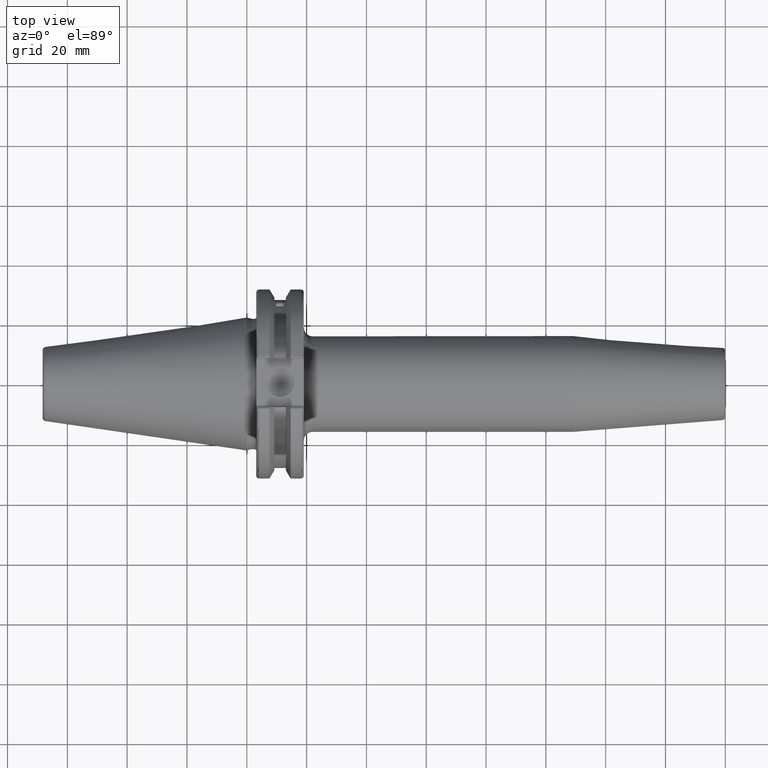
[diagram: clean part render]
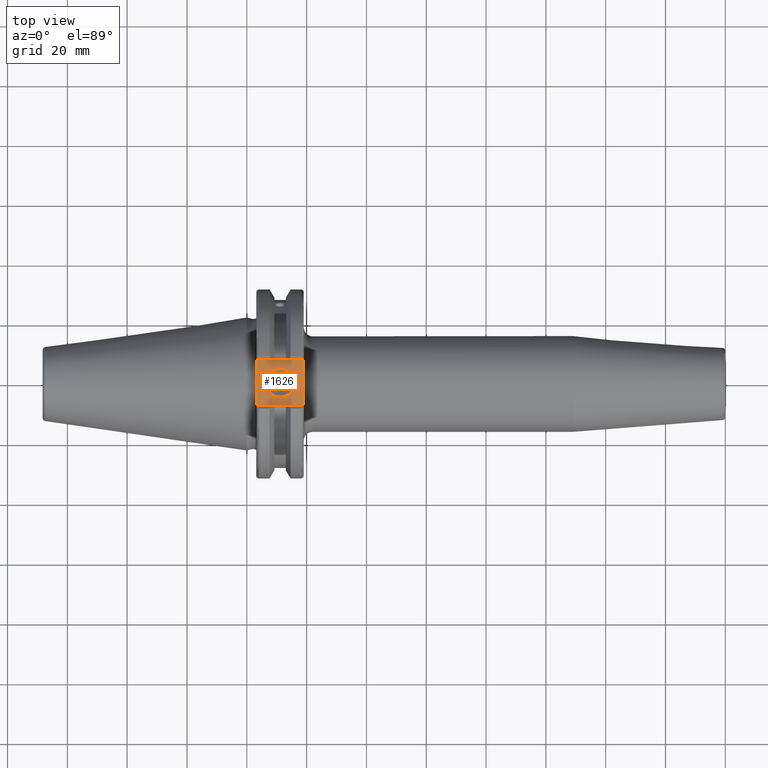
[diagram: same view with one face highlighted and labeled with its STEP entity id]
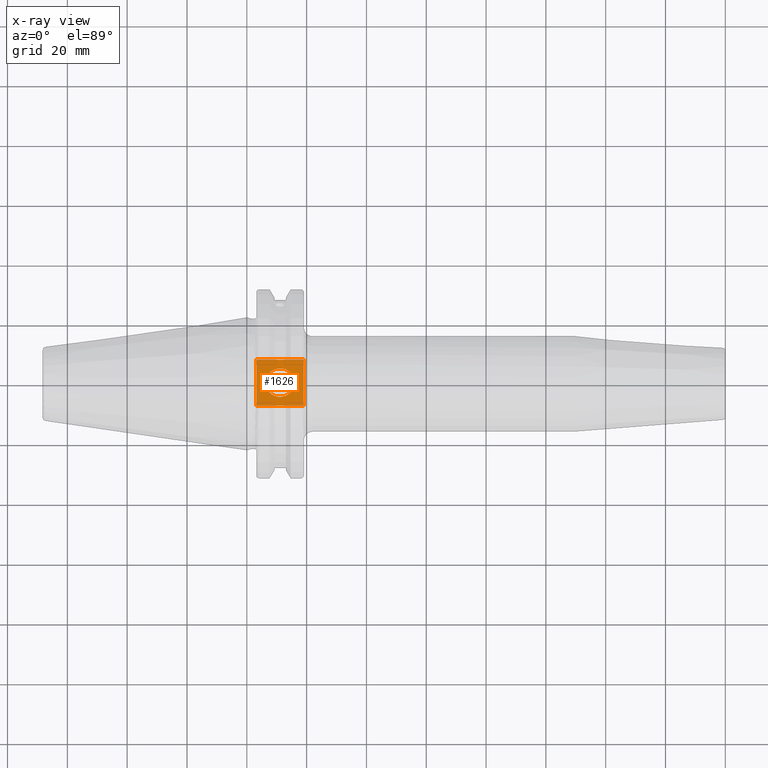
[diagram: x-ray of the same camera — body ghosted, the highlighted face saturated]
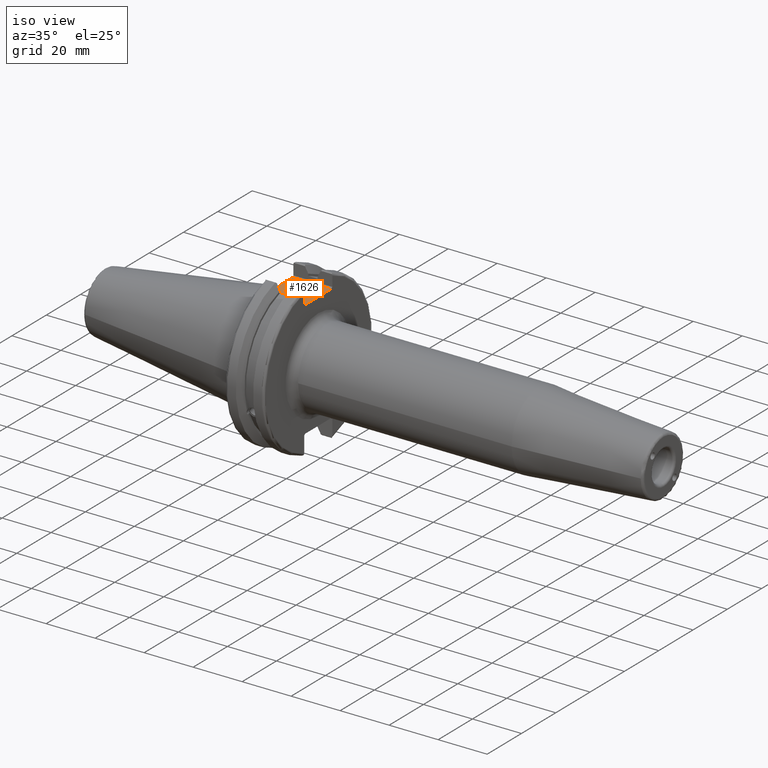
[diagram: same view with one face highlighted and labeled with its STEP entity id]
A machine part, top view. The second image highlights one B-rep face of the part: STEP entity #1626.
The next image is the same camera in x-ray: the body ghosted, the highlighted face saturated — about 0% of this face is hidden behind the body in this view.
A second angle (iso view) of the same face is appended — the face is thin or edge-on in the first view.
In plain terms, the highlighted planar face has unit normal (0, 0, 1).
Its self-contained STEP definition (entity closure, byte-faithful):
#79=LINE('',#2373,#175);
#125=LINE('',#2822,#221);
#153=LINE('',#3051,#249);
#155=LINE('',#3054,#251);
#175=VECTOR('',#1903,10.);
#221=VECTOR('',#2143,10.);
#249=VECTOR('',#2237,10.);
#251=VECTOR('',#2241,10.);
#313=FACE_BOUND('',#568,.T.);
#371=PLANE('',#1836);
#459=FACE_OUTER_BOUND('',#567,.T.);
#567=EDGE_LOOP('',(#1501,#1502,#1503,#1504));
#568=EDGE_LOOP('',(#1505));
#645=CIRCLE('',#1824,4.7625);
#670=VERTEX_POINT('',#2370);
#671=VERTEX_POINT('',#2372);
#762=VERTEX_POINT('',#2819);
#763=VERTEX_POINT('',#2821);
#809=VERTEX_POINT('',#3090);
#834=EDGE_CURVE('',#670,#671,#79,.T.);
#959=EDGE_CURVE('',#762,#763,#125,.T.);
#1022=EDGE_CURVE('',#671,#762,#153,.T.);
#1024=EDGE_CURVE('',#763,#670,#155,.T.);
#1039=EDGE_CURVE('',#809,#809,#645,.T.);
#1501=ORIENTED_EDGE('',*,*,#1022,.F.);
#1502=ORIENTED_EDGE('',*,*,#834,.F.);
#1503=ORIENTED_EDGE('',*,*,#1024,.F.);
#1504=ORIENTED_EDGE('',*,*,#959,.F.);
#1505=ORIENTED_EDGE('',*,*,#1039,.T.);
#1626=ADVANCED_FACE('',(#459,#313),#371,.T.);
#1824=AXIS2_PLACEMENT_3D('',#3091,#2276,#2277);
#1836=AXIS2_PLACEMENT_3D('',#3104,#2301,#2302);
#1903=DIRECTION('',(0.,-1.,0.));
#2143=DIRECTION('',(0.,1.,0.));
#2237=DIRECTION('',(-1.,1.31581988103722E-16,0.));
#2241=DIRECTION('',(1.,0.,0.));
#2276=DIRECTION('center_axis',(0.,0.,-1.));
#2277=DIRECTION('ref_axis',(1.,0.,0.));
#2301=DIRECTION('center_axis',(0.,0.,1.));
#2302=DIRECTION('ref_axis',(1.,0.,0.));
#2370=CARTESIAN_POINT('',(19.05,7.69,25.));
#2372=CARTESIAN_POINT('',(19.05,-7.69,25.));
#2373=CARTESIAN_POINT('',(19.05,0.,25.));
#2819=CARTESIAN_POINT('',(3.175,-7.68999999999999,25.));
#2821=CARTESIAN_POINT('',(3.175,7.69,25.));
#2822=CARTESIAN_POINT('',(3.175,15.875,25.));
#3051=CARTESIAN_POINT('',(9.44125,-7.69,25.));
#3054=CARTESIAN_POINT('',(17.87875,7.69,25.));
#3090=CARTESIAN_POINT('',(6.3716,-5.83238038093927E-16,25.));
#3091=CARTESIAN_POINT('Origin',(11.1341,0.,25.));
#3104=CARTESIAN_POINT('Origin',(15.7075,0.,25.));